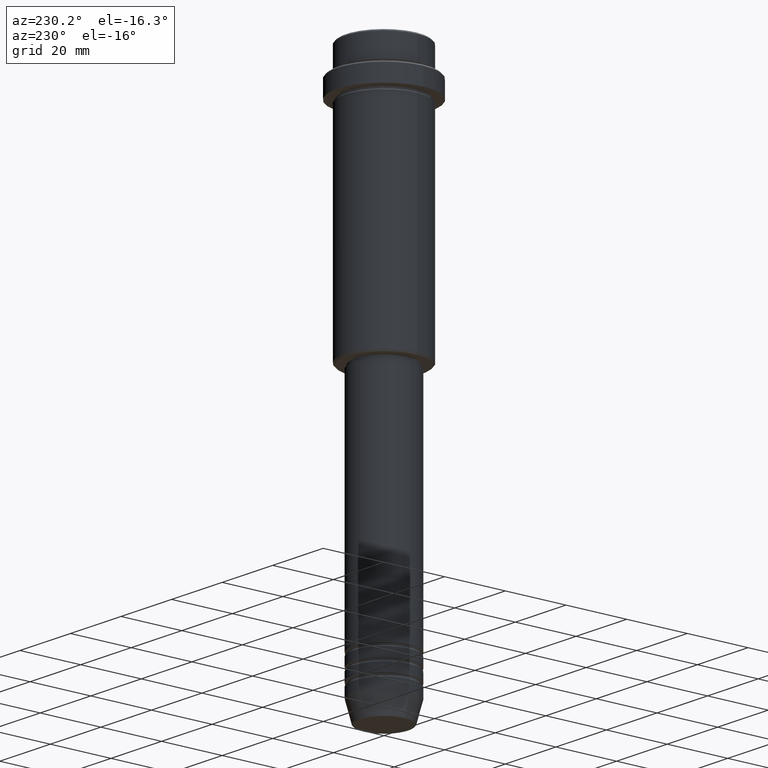
[diagram: clean part render]
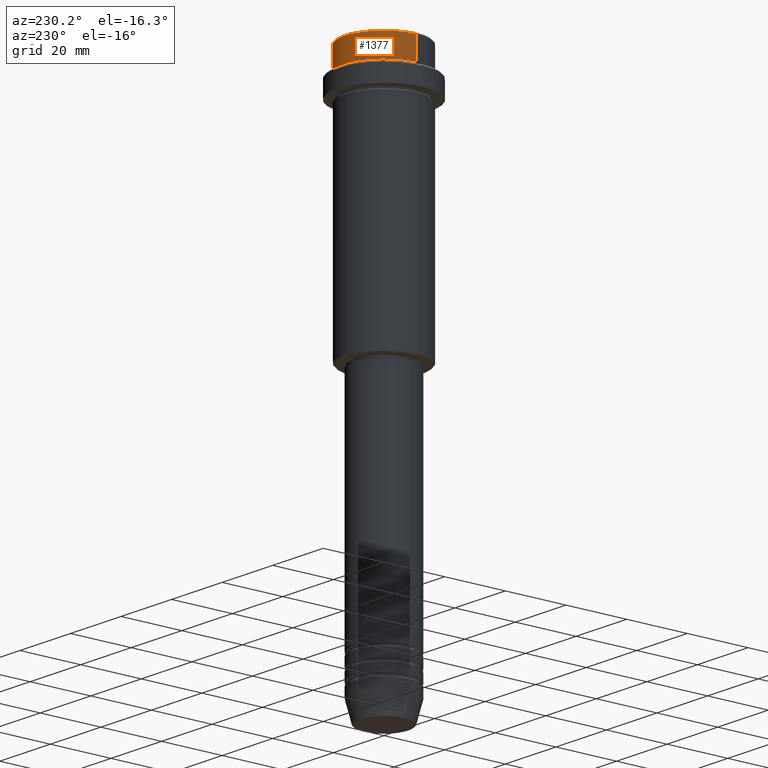
[diagram: same view with one face highlighted and labeled with its STEP entity id]
A machine part, auxiliary view. The second image highlights one B-rep face of the part: STEP entity #1377.
In plain terms, the highlighted cylindrical surface (partial cylindrical patch) has radius 13 mm, axis along (-0, -0, 1).
Its self-contained STEP definition (entity closure, byte-faithful):
#14 = VECTOR ( 'NONE', #971, 1000.000000000000000 ) ;
#23 = FACE_OUTER_BOUND ( 'NONE', #1200, .T. ) ;
#135 = EDGE_CURVE ( 'NONE', #916, #1194, #217, .T. ) ;
#136 = DIRECTION ( 'NONE',  ( -0.000000000000000000, -0.000000000000000000, 1.000000000000000000 ) ) ;
#164 = CARTESIAN_POINT ( 'NONE',  ( 0.000000000000000000, 0.000000000000000000, -0.5000000000000038858 ) ) ;
#182 = CARTESIAN_POINT ( 'NONE',  ( 12.99999999999999822, 0.000000000000000000, -7.999999999999998224 ) ) ;
#217 = LINE ( 'NONE', #1407, #14 ) ;
#223 = DIRECTION ( 'NONE',  ( -0.000000000000000000, -0.000000000000000000, 1.000000000000000000 ) ) ;
#295 = CARTESIAN_POINT ( 'NONE',  ( -12.99999999999999822, 1.592040838891558898E-15, -0.5000000000000038858 ) ) ;
#308 = CARTESIAN_POINT ( 'NONE',  ( 12.99999999999999822, 0.000000000000000000, -0.5000000000000038858 ) ) ;
#470 = EDGE_CURVE ( 'NONE', #1194, #477, #746, .T. ) ;
#477 = VERTEX_POINT ( 'NONE', #308 ) ;
#574 = EDGE_CURVE ( 'NONE', #861, #916, #1277, .T. ) ;
#600 = DIRECTION ( 'NONE',  ( 0.000000000000000000, 0.000000000000000000, -1.000000000000000000 ) ) ;
#646 = CARTESIAN_POINT ( 'NONE',  ( -12.99999999999999822, 1.592040838891558898E-15, -7.999999999999998224 ) ) ;
#668 = EDGE_CURVE ( 'NONE', #861, #477, #803, .T. ) ;
#691 = ORIENTED_EDGE ( 'NONE', *, *, #135, .T. ) ;
#706 = AXIS2_PLACEMENT_3D ( 'NONE', #1199, #223, #1314 ) ;
#725 = ORIENTED_EDGE ( 'NONE', *, *, #574, .T. ) ;
#729 = AXIS2_PLACEMENT_3D ( 'NONE', #164, #600, #831 ) ;
#746 = CIRCLE ( 'NONE', #729, 12.99999999999999822 ) ;
#780 = CYLINDRICAL_SURFACE ( 'NONE', #946, 12.99999999999999822 ) ;
#785 = DIRECTION ( 'NONE',  ( 1.000000000000000000, 0.000000000000000000, 0.000000000000000000 ) ) ;
#803 = LINE ( 'NONE', #1336, #1260 ) ;
#831 = DIRECTION ( 'NONE',  ( 1.000000000000000000, 0.000000000000000000, 0.000000000000000000 ) ) ;
#861 = VERTEX_POINT ( 'NONE', #182 ) ;
#901 = DIRECTION ( 'NONE',  ( -0.000000000000000000, -0.000000000000000000, 1.000000000000000000 ) ) ;
#916 = VERTEX_POINT ( 'NONE', #646 ) ;
#936 = ORIENTED_EDGE ( 'NONE', *, *, #470, .T. ) ;
#939 = ORIENTED_EDGE ( 'NONE', *, *, #668, .F. ) ;
#946 = AXIS2_PLACEMENT_3D ( 'NONE', #1221, #901, #785 ) ;
#971 = DIRECTION ( 'NONE',  ( -0.000000000000000000, -0.000000000000000000, 1.000000000000000000 ) ) ;
#1194 = VERTEX_POINT ( 'NONE', #295 ) ;
#1199 = CARTESIAN_POINT ( 'NONE',  ( 0.000000000000000000, 0.000000000000000000, -7.999999999999998224 ) ) ;
#1200 = EDGE_LOOP ( 'NONE', ( #725, #691, #936, #939 ) ) ;
#1221 = CARTESIAN_POINT ( 'NONE',  ( 0.000000000000000000, 0.000000000000000000, 0.000000000000000000 ) ) ;
#1260 = VECTOR ( 'NONE', #136, 1000.000000000000000 ) ;
#1277 = CIRCLE ( 'NONE', #706, 12.99999999999999822 ) ;
#1314 = DIRECTION ( 'NONE',  ( 1.000000000000000000, 0.000000000000000000, 0.000000000000000000 ) ) ;
#1336 = CARTESIAN_POINT ( 'NONE',  ( 12.99999999999999822, 0.000000000000000000, 0.000000000000000000 ) ) ;
#1377 = ADVANCED_FACE ( 'NONE', ( #23 ), #780, .T. ) ;
#1407 = CARTESIAN_POINT ( 'NONE',  ( -12.99999999999999822, 1.592040838891558898E-15, 0.000000000000000000 ) ) ;